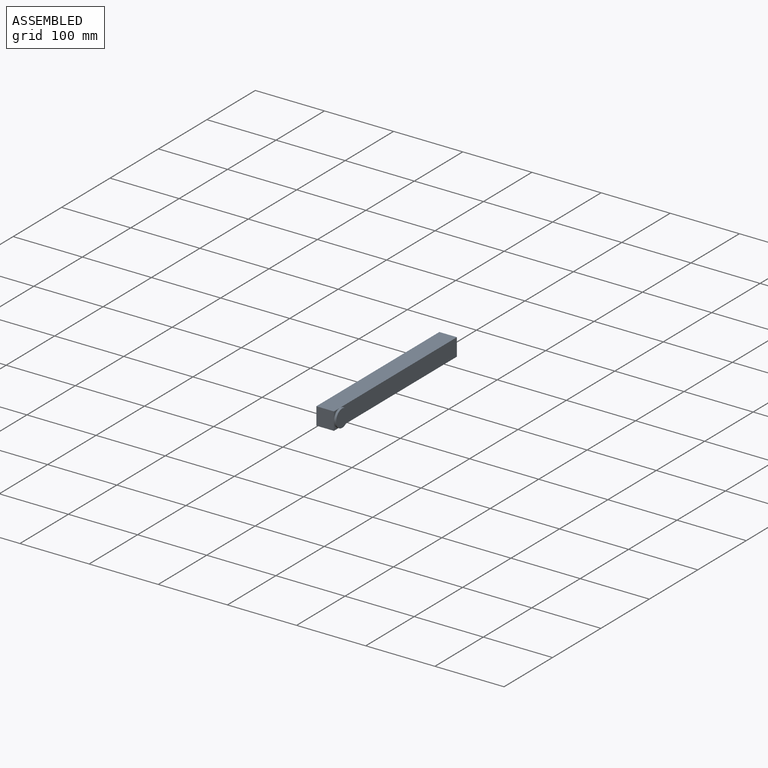
[diagram: assembled view]
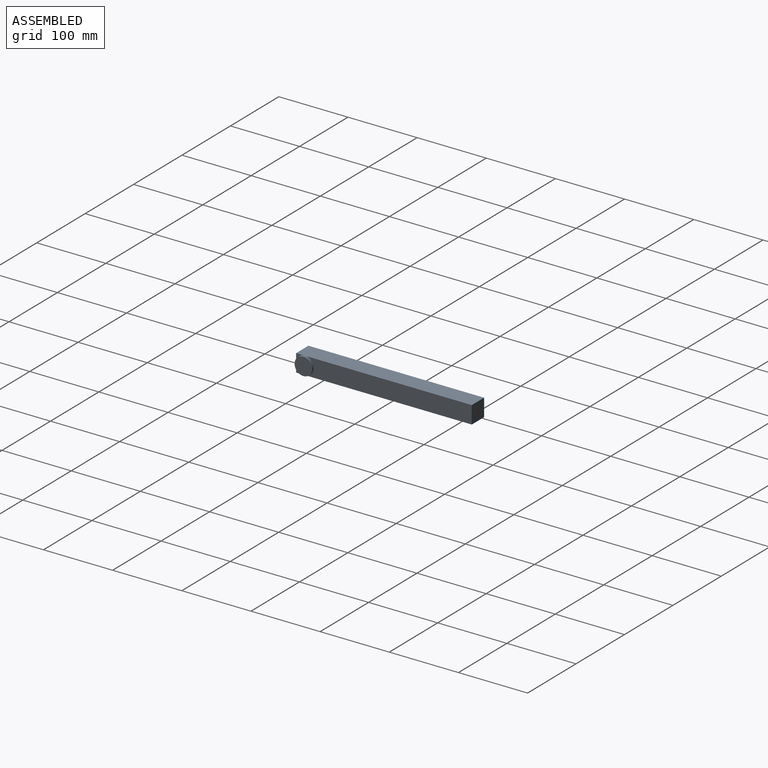
[diagram: assembled view, second angle]
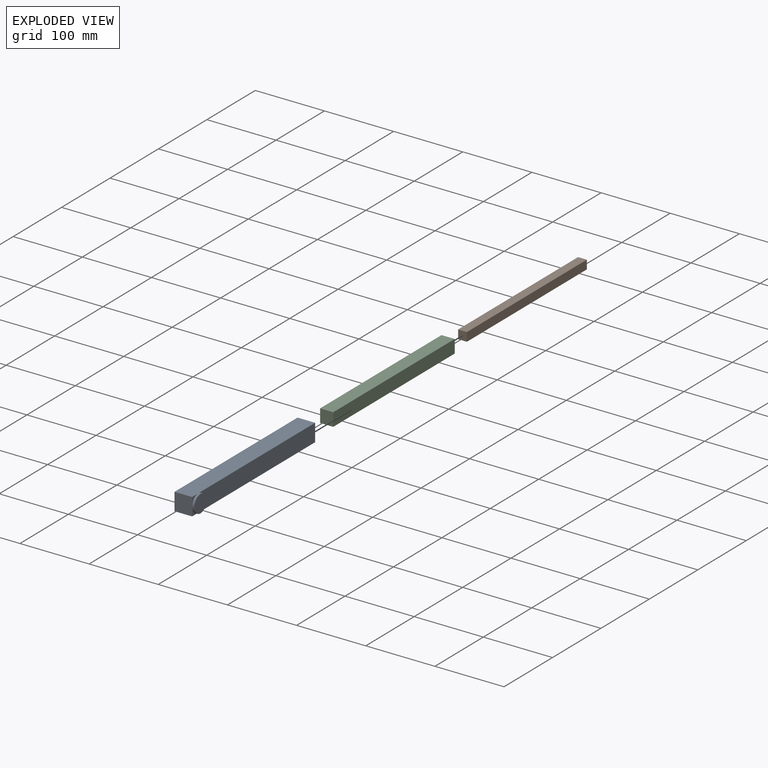
[diagram: exploded view]
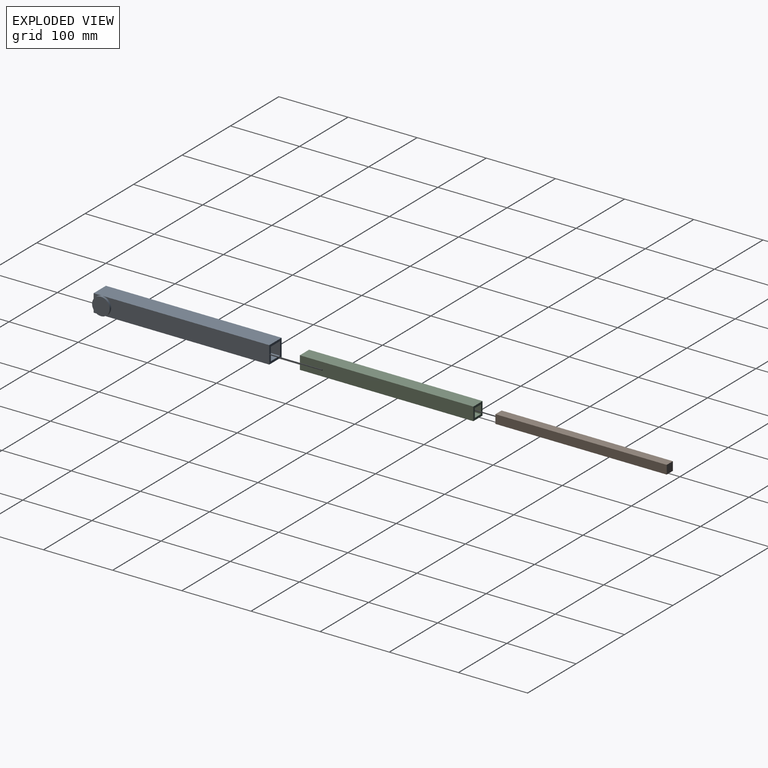
[diagram: exploded view, second angle]
ASSEMBLY  parts=3 mates=2
PART A: 15 faces, bbox 28.6x254x25.4 mm
  f0: plane 12.7x12.7mm, normal (-1,0,0), area 34.6mm2, adj f5,f6,f13
  f1: plane 12.7x12.7mm, normal (-1,0,0), area 34.6mm2, adj f5,f7,f13
  f2: plane 25.4x25.4mm, normal (0,-1,0), area 282.3mm2, adj f3,f4,f6,f7,f8,f9,f11,f12
  f3: plane 241.3x25.4mm, normal (-1,0,0), area 5875.7mm2, adj f2,f6,f7,f13
  f4: plane 254x25.4mm, normal (1,0,0), area 6451.6mm2, adj f2,f5,f6,f7
  f5: plane 25.4x25.4mm, normal (0,1,0), area 645.2mm2, adj f0,f1,f4,f6,f7
  f6: plane 254x25.4mm, normal (0,0,1), area 6451.6mm2, adj f0,f2,f3,f4,f5
  f7: plane 254x25.4mm, normal (0,0,-1), area 6451.6mm2, adj f1,f2,f3,f4,f5
  f8: plane 250.83x19.05mm, normal (1,0,0), area 4778.2mm2, adj f2,f10,f11,f12
  f9: plane 250.83x19.05mm, normal (-1,0,0), area 4778.2mm2, adj f2,f10,f11,f12
  f10: plane 19.05x19.05mm, normal (0,-1,0), area 362.9mm2, adj f8,f9,f11,f12
  f11: plane 250.83x19.05mm, normal (0,0,-1), area 4778.2mm2, adj f2,f8,f9,f10
  f12: plane 250.83x19.05mm, normal (0,0,1), area 4778.2mm2, adj f2,f8,f9,f10
  f13: cylinder r=12.7mm len=25.4mm, axis (1,0,0), area 253.4mm2, adj f0,f1,f3,f14
  f14: plane 25.4x25.4mm, normal (-1,0,0), area 506.7mm2, adj f13
PART B: 6 faces, bbox 12.7x247.7x12.7 mm
  f0: plane 247.65x12.7mm, normal (-1,0,0), area 3145.2mm2, adj f1,f3,f4,f5
  f1: plane 12.7x12.7mm, normal (0,-1,0), area 161.3mm2, adj f0,f2,f4,f5
  f2: plane 247.65x12.7mm, normal (1,0,0), area 3145.2mm2, adj f1,f3,f4,f5
  f3: plane 12.7x12.7mm, normal (0,1,0), area 161.3mm2, adj f0,f2,f4,f5
  f4: plane 247.65x12.7mm, normal (0,0,1), area 3145.2mm2, adj f0,f1,f2,f3
  f5: plane 247.65x12.7mm, normal (0,0,-1), area 3145.2mm2, adj f0,f1,f2,f3
PART C: 11 faces, bbox 19.1x250.8x19.1 mm
  f0: plane 19.05x19.05mm, normal (0,-1,0), area 201.6mm2, adj f1,f2,f4,f5,f6,f7,f9,f10
  f1: plane 250.83x19.05mm, normal (-1,0,0), area 4778.2mm2, adj f0,f3,f4,f5
  f2: plane 250.83x19.05mm, normal (1,0,0), area 4778.2mm2, adj f0,f3,f4,f5
  f3: plane 19.05x19.05mm, normal (0,1,0), area 362.9mm2, adj f1,f2,f4,f5
  f4: plane 250.83x19.05mm, normal (0,0,1), area 4778.2mm2, adj f0,f1,f2,f3
  f5: plane 250.83x19.05mm, normal (0,0,-1), area 4778.2mm2, adj f0,f1,f2,f3
  f6: plane 247.65x12.7mm, normal (1,0,0), area 3145.2mm2, adj f0,f8,f9,f10
  f7: plane 247.65x12.7mm, normal (-1,0,0), area 3145.2mm2, adj f0,f8,f9,f10
  f8: plane 12.7x12.7mm, normal (0,-1,0), area 161.3mm2, adj f6,f7,f9,f10
  f9: plane 247.65x12.7mm, normal (0,0,-1), area 3145.2mm2, adj f0,f6,f7,f8
  f10: plane 247.65x12.7mm, normal (0,0,1), area 3145.2mm2, adj f0,f6,f7,f8
PLACE A rot(axis=(0,0,1),180deg) t=(17.7,80.91,33.01)mm
PLACE B t=(18.84,-115.16,39.36)mm
PLACE C rot(axis=(0,0,1),180deg) t=(-2.21,135.85,36.18)mm
MATE slider B.f1 <-> C.f8  axis (0,-1,0) through (15.66,-128.59,45.71)mm
MATE slider C.f3 <-> A.f10  axis (0,-1,0) through (15.66,-131.76,45.71)mm
